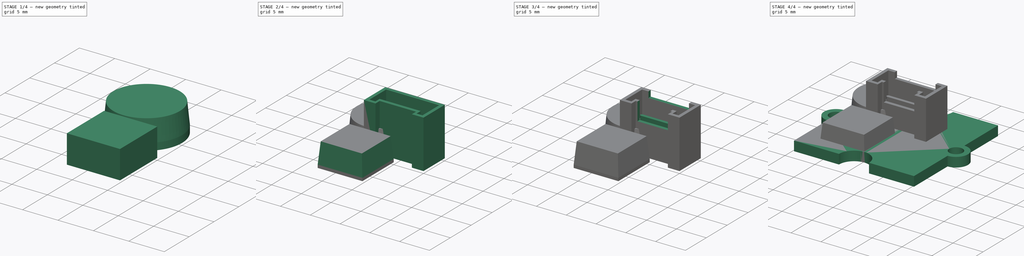
[diagram: build sequence overview — one tinted view per stage of 4, left to right]
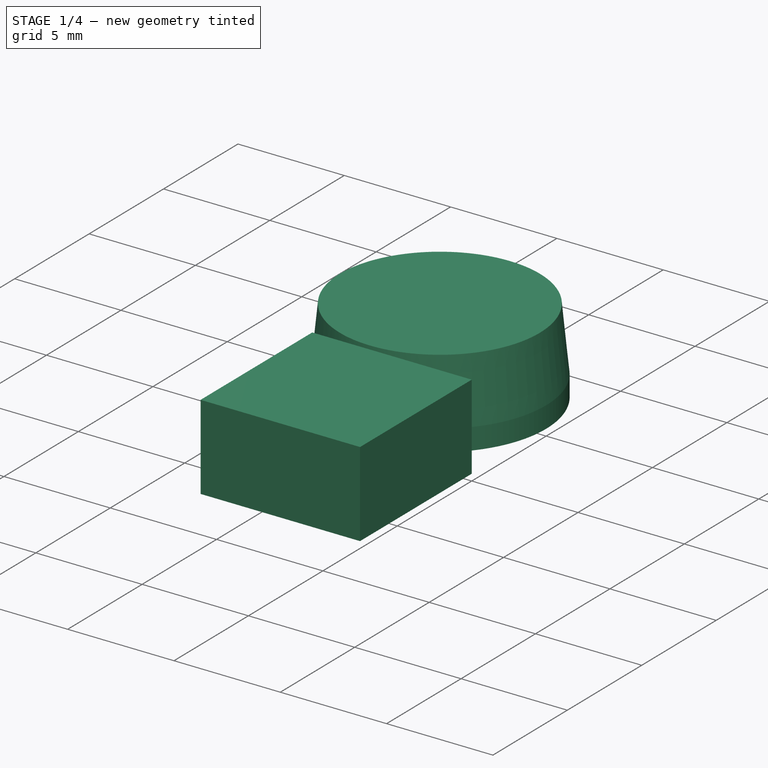
[diagram: stage 1 of 4 — iso view after this stage's code; geometry added in this stage tinted green]
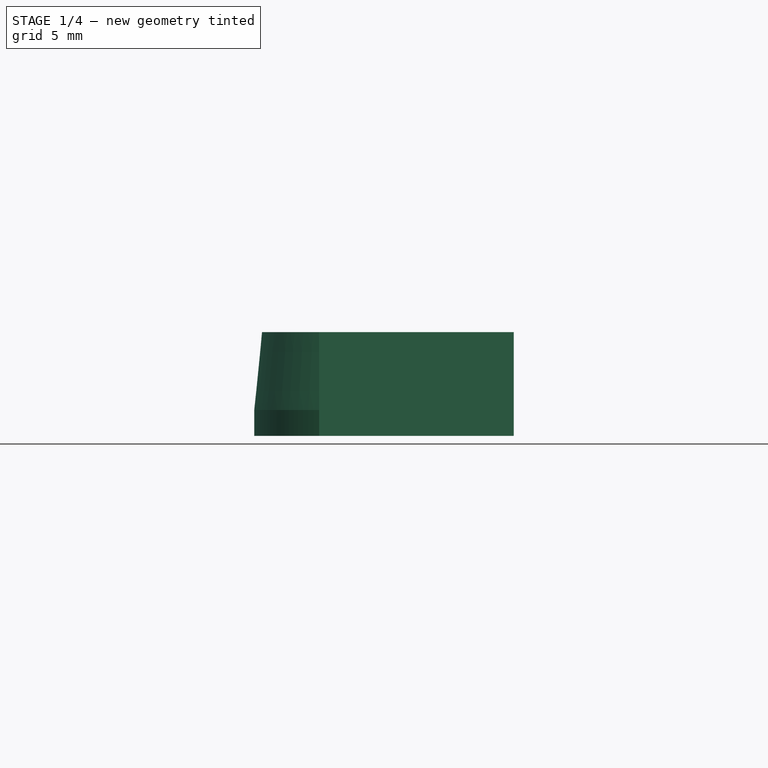
[diagram: stage 1 of 4 — front view after this stage's code; geometry added in this stage tinted green]
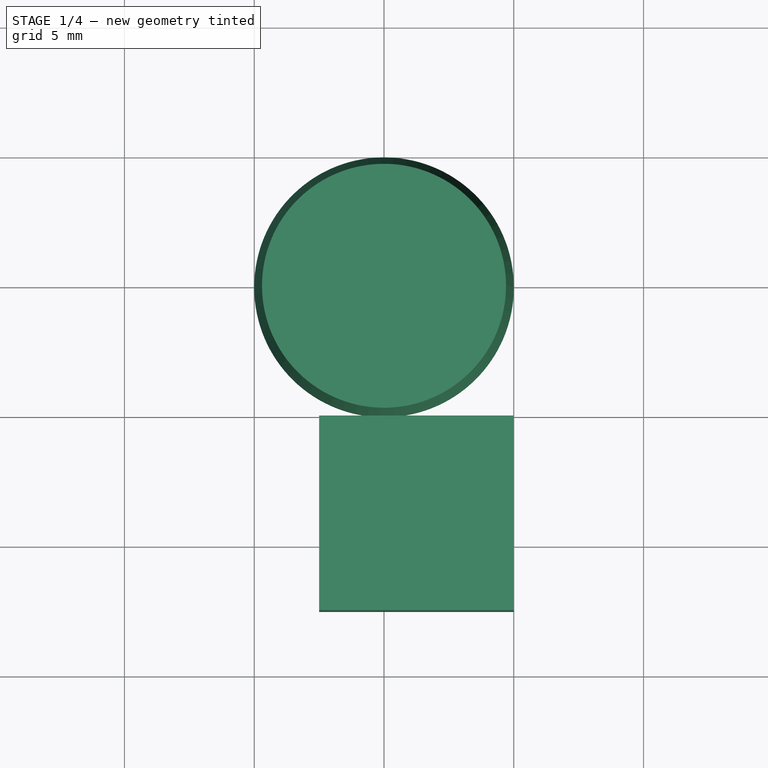
[diagram: stage 1 of 4 — top view after this stage's code; geometry added in this stage tinted green]
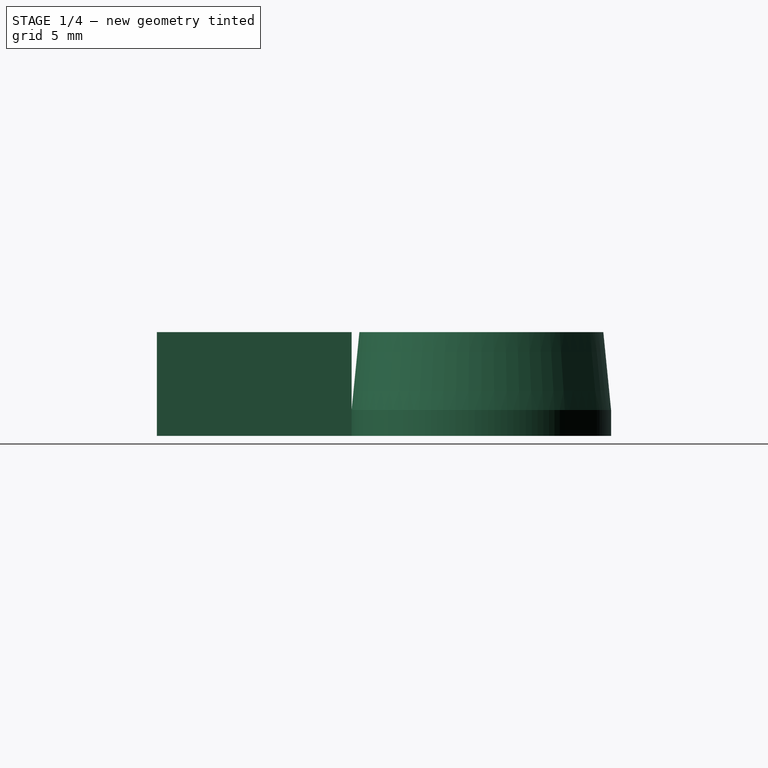
[diagram: stage 1 of 4 — right view after this stage's code; geometry added in this stage tinted green]
FCSTD DOCUMENT  (FreeCAD 0.19R24276 (Git))
Label: Grove_LoudnessSensor
License: All rights reserved
LicenseURL: http://en.wikipedia.org/wiki/All_rights_reserved
objects: Sketcher::SketchObject×10, PartDesign::Pad×6, PartDesign::Pocket×4, PartDesign::Body×4, PartDesign::Chamfer×2, App::Part×1
note: 38 computed .brp shape members not serialized (recipe doc carries the construction recipe); baked Part::Feature solids carry a one-line shape summary decoded from their .brp

FEATURE [PartDesign::Body] Body005  label="GroveHeader1"
  Group = -> [Sketch008,Pad005,Sketch009,Pocket003,Sketch010,Pocket004,Sketch011,Pocket005,Sketch012,Pad006,Sketch013,Pad007]
  Origin = -> Origin007
  Placement = pos=(-8.8,-1.1e-15,1.6) rot=(0,0,1;4.71239rad)
  Tip = -> Pad007
FEATURE [Sketcher::SketchObject] Sketch014
  FullyConstrained = true
  MapMode = 5
  Support = -> [XY_Plane008]
  sketch-geometry (4):
    g0: LineSegment StartX=0 StartY=0 StartZ=0 EndX=-7.5 EndY=0 EndZ=0
    g1: LineSegment StartX=-7.5 StartY=0 StartZ=0 EndX=-7.5 EndY=-7.5 EndZ=0
    g2: LineSegment StartX=-7.5 StartY=-7.5 StartZ=0 EndX=0 EndY=-7.5 EndZ=0
    g3: LineSegment StartX=0 StartY=-7.5 StartZ=0 EndX=0 EndY=0 EndZ=0
  constraints (11):
    c: Coincident(g0,g1)
    c: Coincident(g1,g2)
    c: Coincident(g2,g3)
    c: Coincident(g3,g0)
    c: Horizontal(g0)
    c: Horizontal(g2)
    c: Vertical(g1)
    c: Vertical(g3)
    c: Coincident(g0,g-1)
    c: Distance(g0) = 7.5
    c: Equal(g3,g0)
FEATURE [PartDesign::Pad] Pad008
  Direction = (1,1,1)
  Length = 4
  Length2 = 100
  Profile = -> Sketch014
  Type = 0
FEATURE [PartDesign::Body] Body006  label="VolumePot"
  Group = -> [Sketch014,Pad008,Chamfer]
  Origin = -> Origin008
  Placement = pos=(10,10,1.6) rot=(0,0,1;0rad)
  Tip = -> Chamfer
FEATURE [Sketcher::SketchObject] Sketch015
  FullyConstrained = true
  MapMode = 5
  Support = -> [XY_Plane009]
  sketch-geometry (3):
    g0: Circle CenterX=-5 CenterY=5 CenterZ=0 NormalX=0 NormalY=0 NormalZ=1 AngleXU=0 Radius=5
    g1: LineSegment StartX=0 StartY=0 StartZ=0 EndX=0 EndY=5 EndZ=0
    g2: LineSegment StartX=0 StartY=0 StartZ=0 EndX=-4.99998 EndY=0 EndZ=0
  constraints (9):
    c: Coincident(g1,g-1)
    c: PointOnObject(g1,g-2)
    c: Coincident(g2,g-1)
    c: Horizontal(g2)
    c: Tangent(g1,g0)
    c: Tangent(g2,g0)
    c: PointOnObject(g1,g0)
    c: PointOnObject(g2,g0)
    c: Diameter(g0) = 10
FEATURE [PartDesign::Pad] Pad009
  Direction = (1,1,1)
  Length = 4
  Length2 = 100
  Profile = -> Sketch015
  Type = 0
FEATURE [PartDesign::Chamfer] Chamfer001
  Angle = 45
  Base = -> Pad009 [Edge3]
  BaseFeature = -> Pad009
  ChamferType = 1
  FlipDirection = false
  Size = 3
  Size2 = 0.3
  SupportTransform = false
FEATURE [PartDesign::Body] Body007  label="Speaker"
  Group = -> [Sketch015,Pad009,Chamfer001]
  Origin = -> Origin009
  Placement = pos=(11,-10,1.6) rot=(0,0,1;0rad)
  Tip = -> Chamfer001
FEATURE [App::Part] Part  label="Grove_LoudnessSens"
  Group = -> [Body,Body005,Body006,Body007]
  Origin = -> Origin
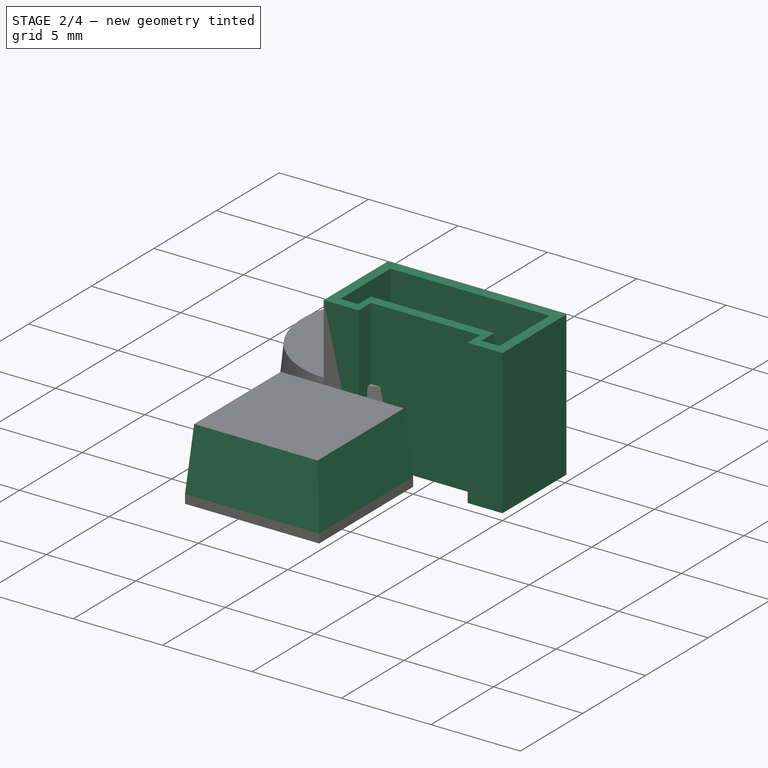
[diagram: stage 2 of 4 — iso view after this stage's code; geometry added in this stage tinted green]
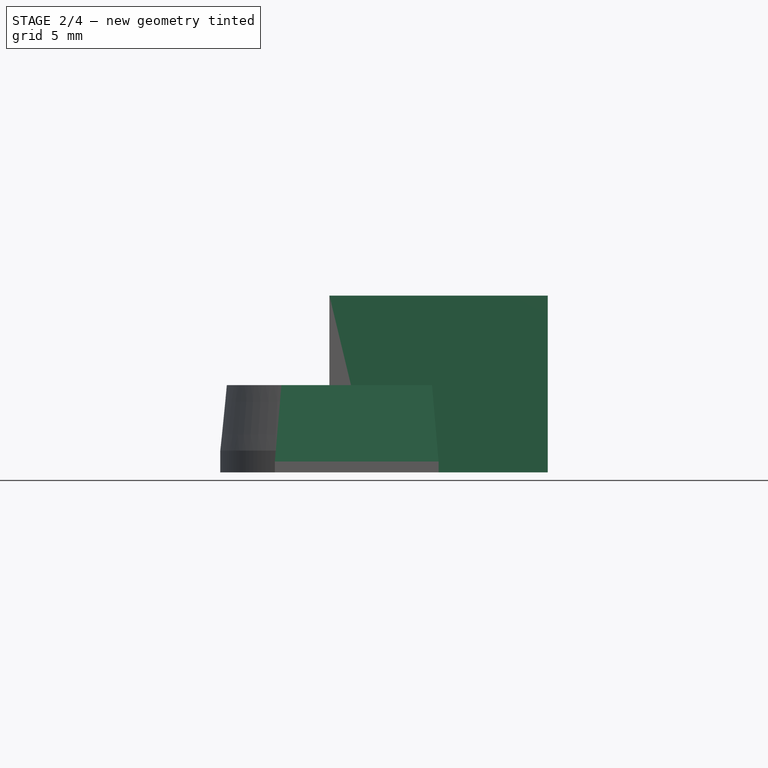
[diagram: stage 2 of 4 — front view after this stage's code; geometry added in this stage tinted green]
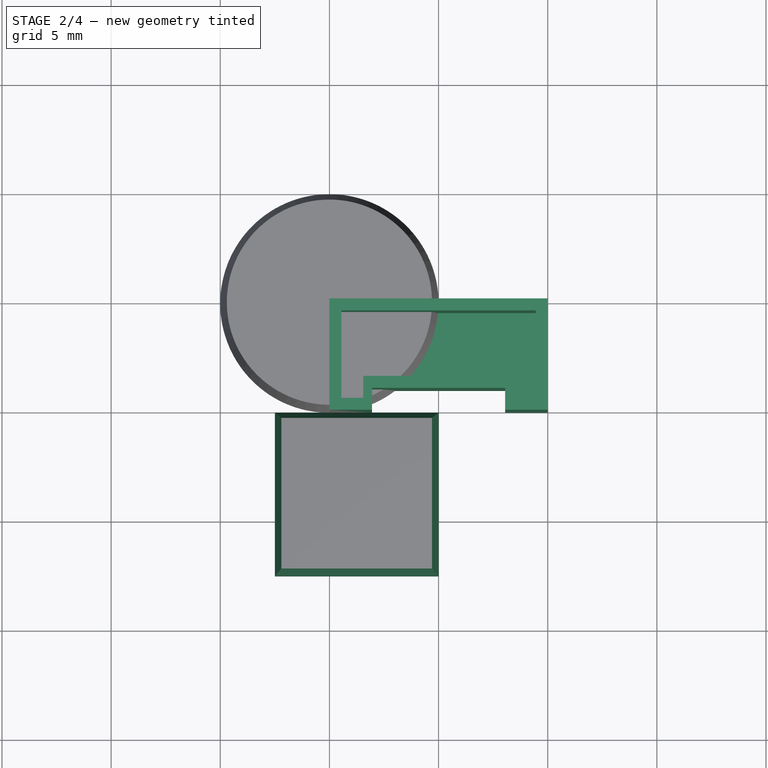
[diagram: stage 2 of 4 — top view after this stage's code; geometry added in this stage tinted green]
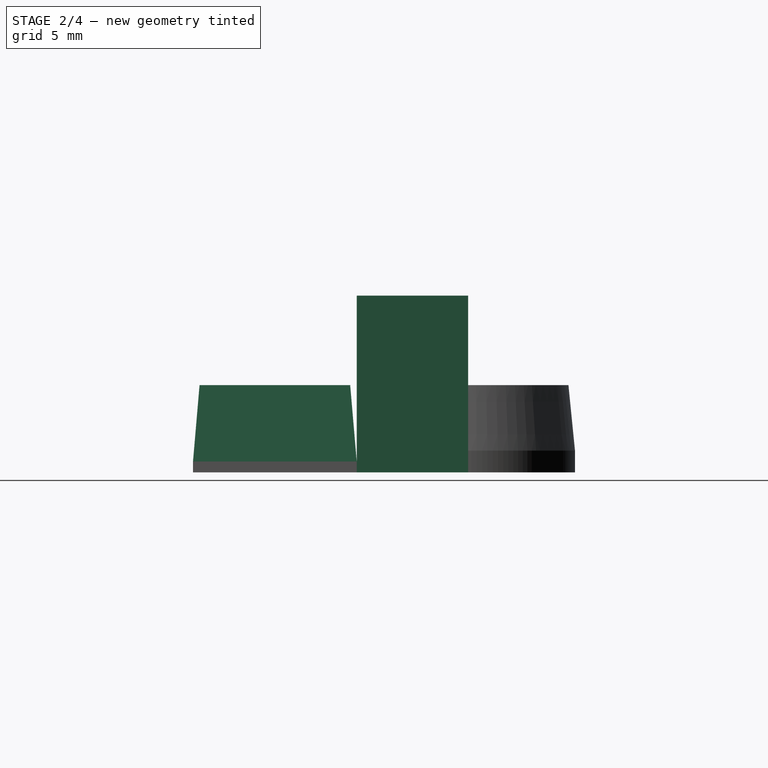
[diagram: stage 2 of 4 — right view after this stage's code; geometry added in this stage tinted green]
FEATURE [PartDesign::Body] Body  label="GroveBoard"
  Group = -> [Sketch,Pad,Sketch001,Pocket]
  Origin = -> Origin001
  Tip = -> Pocket
FEATURE [Sketcher::SketchObject] Sketch008
  FullyConstrained = true
  MapMode = 5
  Support = -> [XY_Plane007]
  sketch-geometry (8):
    g0: LineSegment StartX=-5 StartY=0 StartZ=0 EndX=-3.05 EndY=0 EndZ=0
    g1: LineSegment StartX=3.05 StartY=0 StartZ=0 EndX=5 EndY=0 EndZ=0
    g2: LineSegment StartX=-5 StartY=0 StartZ=0 EndX=-5 EndY=5.1 EndZ=0
    g3: LineSegment StartX=-5 StartY=5.1 StartZ=0 EndX=5 EndY=5.1 EndZ=0
    g4: LineSegment StartX=5 StartY=5.1 StartZ=0 EndX=5 EndY=0 EndZ=0
    g5: LineSegment StartX=3.05 StartY=0 StartZ=0 EndX=3.05 EndY=1 EndZ=0
    g6: LineSegment StartX=3.05 StartY=1 StartZ=0 EndX=-3.05 EndY=1 EndZ=0
    g7: LineSegment StartX=-3.05 StartY=1 StartZ=0 EndX=-3.05 EndY=0 EndZ=0
  constraints (23):
    c: PointOnObject(g0,g-1)
    c: PointOnObject(g1,g-1)
    c: PointOnObject(g0,g-1)
    c: Coincident(g2,g0)
    c: Vertical(g2)
    c: Coincident(g3,g2)
    c: Horizontal(g3)
    c: Coincident(g4,g3)
    c: Coincident(g4,g1)
    c: Vertical(g4)
    c: Coincident(g5,g1)
    c: Vertical(g5)
    c: Coincident(g6,g5)
    c: Horizontal(g6)
    c: Coincident(g7,g6)
    c: Coincident(g7,g0)
    c: Vertical(g7)
    c: Equal(g0,g1)
    c: Symmetric(g0,g1,g-1)
    c: Distance(g4) = 5.1
    c: Distance(g6) = 6.1
    c: Distance(g3) = 10
    c: Distance(g7) = 1
FEATURE [Sketcher::SketchObject] Sketch013
  FullyConstrained = true
  MapMode = 5
  Support = -> [XY_Plane007]
  sketch-geometry (5):
    g0: ArcOfCircle CenterX=-3 CenterY=3 CenterZ=0 NormalX=0 NormalY=0 NormalZ=1 AngleXU=0 Radius=0.75 StartAngle=1.5708 EndAngle=4.71239
    g1: ArcOfCircle CenterX=3 CenterY=3 CenterZ=0 NormalX=0 NormalY=0 NormalZ=1 AngleXU=0 Radius=0.75 StartAngle=4.71239 EndAngle=7.85398
    g2: LineSegment StartX=-3 StartY=2.25 StartZ=0 EndX=3 EndY=2.25 EndZ=0
    g3: LineSegment StartX=-3 StartY=3.75 StartZ=0 EndX=3 EndY=3.75 EndZ=0
    g4: LineSegment StartX=0 StartY=0 StartZ=0 EndX=0 EndY=3 EndZ=0
  constraints (12):
    c: Tangent(g0,g3) = 1.5708
    c: Tangent(g0,g2) = -1.5708
    c: Tangent(g2,g1) = -1.5708
    c: Tangent(g3,g1) = 1.5708
    c: Horizontal(g2)
    c: Equal(g0,g1)
    c: Coincident(g4,g-1)
    c: PointOnObject(g4,g-2)
    c: Symmetric(g0,g1,g4)
    c: Distance(g4) = 3
    c: DistanceY(g1,g1) = 1.5
    c: DistanceX(g0,g1) = 6
FEATURE [PartDesign::Pad] Pad005
  Direction = (1,1,1)
  Length = 8.1
  Length2 = 100
  Profile = -> Sketch008
  Type = 0
FEATURE [Sketcher::SketchObject] Sketch009
  FullyConstrained = true
  MapMode = 5
  Placement = pos=(0,0,8.1) rot=(0,0,1;0rad)
  Support = -> [Pad005]
  sketch-geometry (10):
    g0: LineSegment StartX=-4.45 StartY=0.55 StartZ=0 EndX=-3.45 EndY=0.55 EndZ=0
    g1: LineSegment StartX=-3.45 StartY=0.55 StartZ=0 EndX=-3.45 EndY=1.55 EndZ=0
    g2: LineSegment StartX=-3.45 StartY=1.55 StartZ=0 EndX=3.45 EndY=1.55 EndZ=0
    g3: LineSegment StartX=3.45 StartY=1.55 StartZ=0 EndX=3.45 EndY=0.55 EndZ=0
    g4: LineSegment StartX=3.45 StartY=0.55 StartZ=0 EndX=4.45 EndY=0.55 EndZ=0
    g5: LineSegment StartX=4.45 StartY=0.55 StartZ=0 EndX=4.45 EndY=4.55 EndZ=0
    g6: LineSegment StartX=4.45 StartY=4.55 StartZ=0 EndX=-4.45 EndY=4.55 EndZ=0
    g7: LineSegment StartX=-4.45 StartY=4.55 StartZ=0 EndX=-4.45 EndY=0.55 EndZ=0
    g8: LineSegment StartX=-3.45 StartY=0.55 StartZ=0 EndX=3.45 EndY=0.55 EndZ=0
    g9: LineSegment StartX=0 StartY=0 StartZ=0 EndX=0 EndY=0.55 EndZ=0
  constraints (28):
    c: Horizontal(g0)
    c: Coincident(g1,g0)
    c: Coincident(g2,g1)
    c: Horizontal(g2)
    c: Coincident(g3,g2)
    c: Vertical(g3)
    c: Coincident(g4,g3)
    c: Horizontal(g4)
    c: Coincident(g5,g4)
    c: Vertical(g5)
    c: Coincident(g6,g5)
    c: Horizontal(g6)
    c: Coincident(g7,g6)
    c: Coincident(g7,g0)
    c: Vertical(g7)
    c: Vertical(g1)
    c: Coincident(g8,g0)
    c: Coincident(g8,g3)
    c: Horizontal(g8)
    c: Equal(g0,g4)
    c: Coincident(g9,g-1)
    c: PointOnObject(g9,g-2)
    c: Symmetric(g0,g3,g9)
    c: Distance(g0) = 1
    c: Distance(g1) = 1
    c: Distance(g9) = 0.55
    c: Distance(g6) = 8.9
    c: DistanceY(g2,g5) = 3
FEATURE [PartDesign::Pocket] Pocket003
  BaseFeature = -> Pad005
  Length = 7
  Length2 = 100
  Profile = -> Sketch009
  Type = 0
FEATURE [PartDesign::Chamfer] Chamfer
  Angle = 45
  Base = -> Pad008 [Edge10,Edge12,Edge4,Edge7]
  BaseFeature = -> Pad008
  ChamferType = 1
  FlipDirection = false
  Size = 3.5
  Size2 = 0.3
  SupportTransform = false
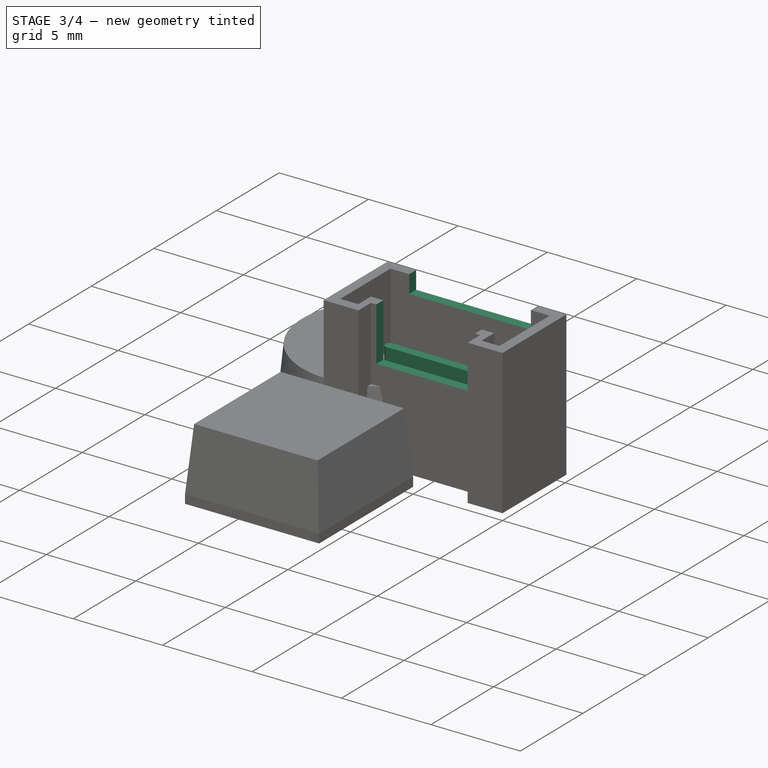
[diagram: stage 3 of 4 — iso view after this stage's code; geometry added in this stage tinted green]
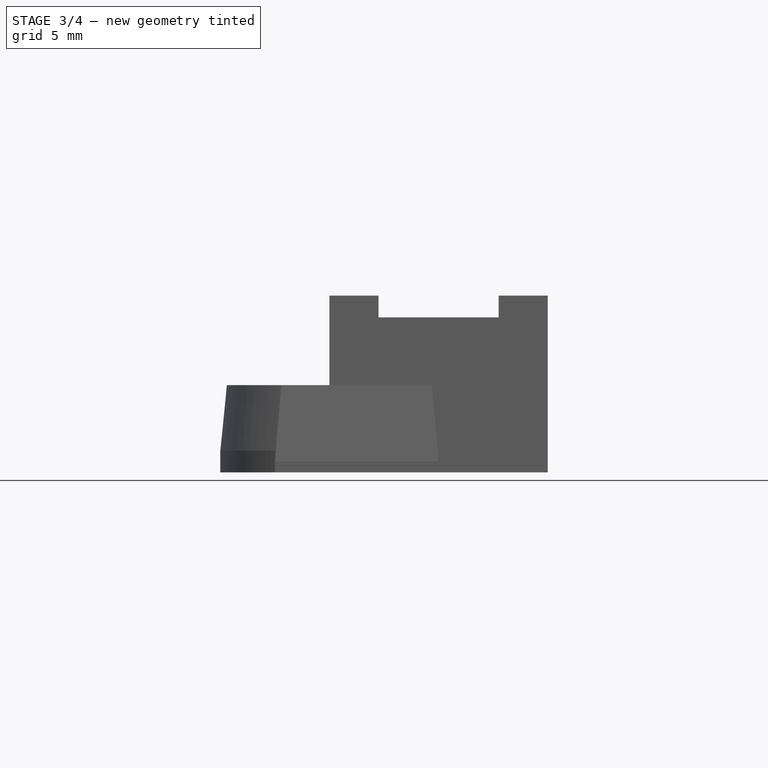
[diagram: stage 3 of 4 — front view after this stage's code; geometry added in this stage tinted green]
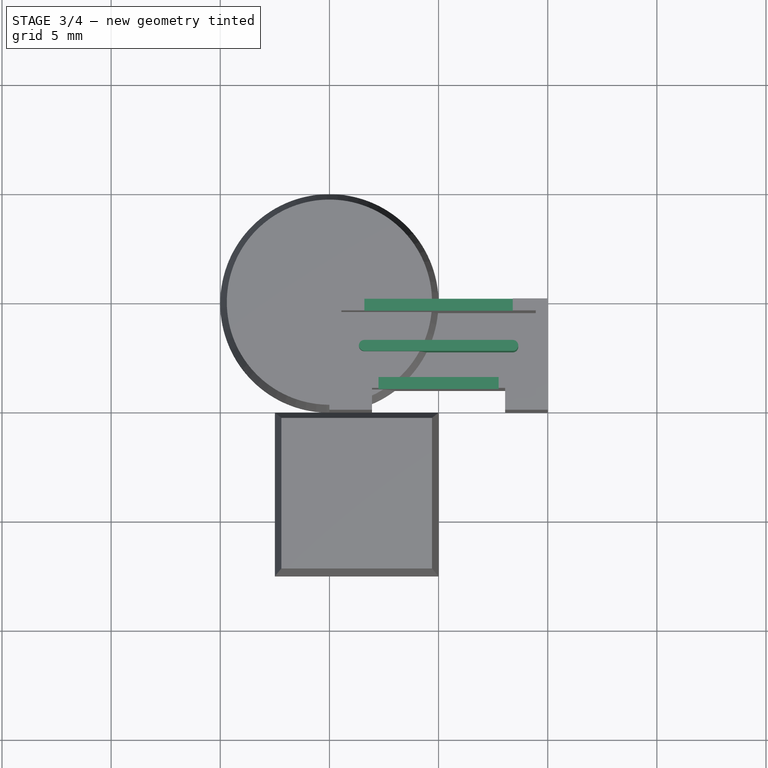
[diagram: stage 3 of 4 — top view after this stage's code; geometry added in this stage tinted green]
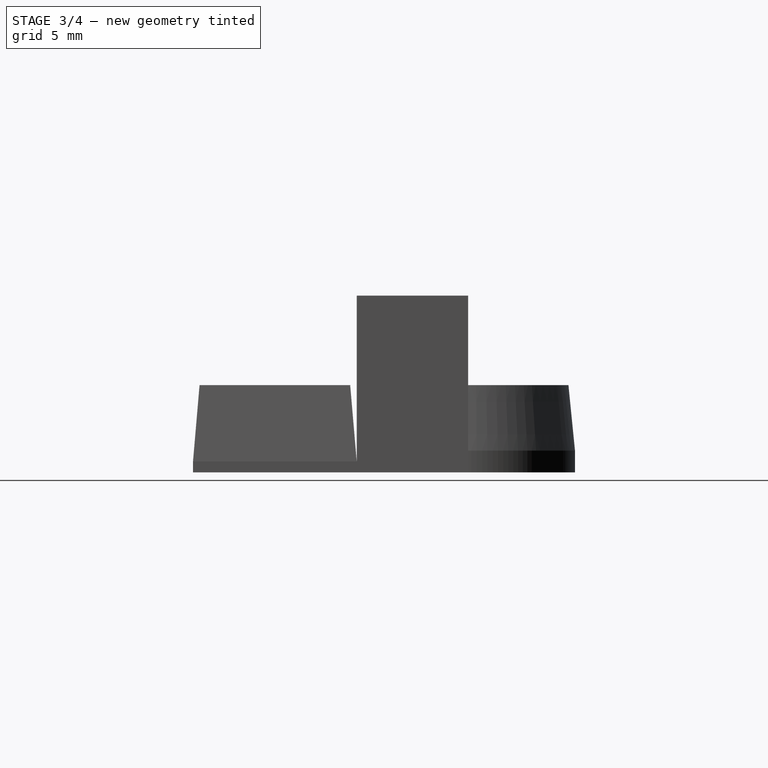
[diagram: stage 3 of 4 — right view after this stage's code; geometry added in this stage tinted green]
FEATURE [Sketcher::SketchObject] Sketch010
  FullyConstrained = true
  MapMode = 5
  Placement = pos=(0,0,8.1) rot=(0,0,1;0rad)
  Support = -> [Pocket003]
  sketch-geometry (5):
    g0: LineSegment StartX=0 StartY=0 StartZ=0 EndX=0 EndY=3 EndZ=0
    g1: LineSegment StartX=-3.4 StartY=8 StartZ=0 EndX=3.4 EndY=8 EndZ=0
    g2: LineSegment StartX=3.4 StartY=8 StartZ=0 EndX=3.4 EndY=3 EndZ=0
    g3: LineSegment StartX=3.4 StartY=3 StartZ=0 EndX=-3.4 EndY=3 EndZ=0
    g4: LineSegment StartX=-3.4 StartY=3 StartZ=0 EndX=-3.4 EndY=8 EndZ=0
  constraints (14):
    c: Coincident(g0,g-1)
    c: PointOnObject(g0,g-2)
    c: Coincident(g1,g2)
    c: Coincident(g2,g3)
    c: Coincident(g3,g4)
    c: Coincident(g4,g1)
    c: Horizontal(g1)
    c: Horizontal(g3)
    c: Vertical(g2)
    c: Vertical(g4)
    c: Symmetric(g3,g2,g0)
    c: Distance(g0) = 3
    c: Distance(g2) = 5
    c: Distance(g1) = 6.8
FEATURE [PartDesign::Pocket] Pocket004
  BaseFeature = -> Pocket003
  Length = 1
  Length2 = 100
  Profile = -> Sketch010
  Type = 0
FEATURE [Sketcher::SketchObject] Sketch011
  FullyConstrained = true
  MapMode = 5
  Placement = pos=(0,0,8.1) rot=(0,0,1;0rad)
  Support = -> [Pocket004]
  sketch-geometry (4):
    g0: LineSegment StartX=-2.75 StartY=3 StartZ=0 EndX=2.75 EndY=3 EndZ=0
    g1: LineSegment StartX=2.75 StartY=3 StartZ=0 EndX=2.75 EndY=0 EndZ=0
    g2: LineSegment StartX=2.75 StartY=0 StartZ=0 EndX=-2.75 EndY=0 EndZ=0
    g3: LineSegment StartX=-2.75 StartY=0 StartZ=0 EndX=-2.75 EndY=3 EndZ=0
  constraints (11):
    c: Coincident(g0,g1)
    c: Coincident(g1,g2)
    c: Coincident(g2,g3)
    c: Coincident(g3,g0)
    c: Horizontal(g0)
    c: Horizontal(g2)
    c: Vertical(g1)
    c: Vertical(g3)
    c: Symmetric(g2,g1,g-1)
    c: Distance(g1) = 3
    c: Distance(g0) = 5.5
FEATURE [PartDesign::Pocket] Pocket005
  BaseFeature = -> Pocket004
  Length = 3
  Length2 = 100
  Profile = -> Sketch011
  Type = 0
FEATURE [Sketcher::SketchObject] Sketch012
  FullyConstrained = true
  MapMode = 5
  Placement = pos=(0,0,1.1) rot=(0,0,1;0rad)
  Support = -> [Pocket005]
  sketch-geometry (5):
    g0: ArcOfCircle CenterX=-3.4 CenterY=3 CenterZ=0 NormalX=0 NormalY=0 NormalZ=1 AngleXU=0 Radius=0.25 StartAngle=1.5708 EndAngle=4.71239
    g1: ArcOfCircle CenterX=3.4 CenterY=3 CenterZ=0 NormalX=0 NormalY=0 NormalZ=1 AngleXU=0 Radius=0.25 StartAngle=4.71239 EndAngle=7.85398
    g2: LineSegment StartX=-3.4 StartY=2.75 StartZ=0 EndX=3.4 EndY=2.75 EndZ=0
    g3: LineSegment StartX=-3.4 StartY=3.25 StartZ=0 EndX=3.4 EndY=3.25 EndZ=0
    g4: LineSegment StartX=0 StartY=0 StartZ=0 EndX=0 EndY=2.75 EndZ=0
  constraints (12):
    c: Tangent(g0,g3) = 1.5708
    c: Tangent(g0,g2) = -1.5708
    c: Tangent(g2,g1) = -1.5708
    c: Tangent(g3,g1) = 1.5708
    c: Horizontal(g2)
    c: Equal(g0,g1)
    c: Coincident(g4,g-1)
    c: PointOnObject(g4,g-2)
    c: Symmetric(g0,g1,g4)
    c: DistanceY(g-1,g1) = 3
    c: DistanceY(g1,g1) = 0.5
    c: DistanceX(g0,g1) = 6.8
FEATURE [PartDesign::Pad] Pad006
  BaseFeature = -> Pocket005
  Direction = (1,1,1)
  Length = 4
  Length2 = 100
  Profile = -> Sketch012
  Type = 0
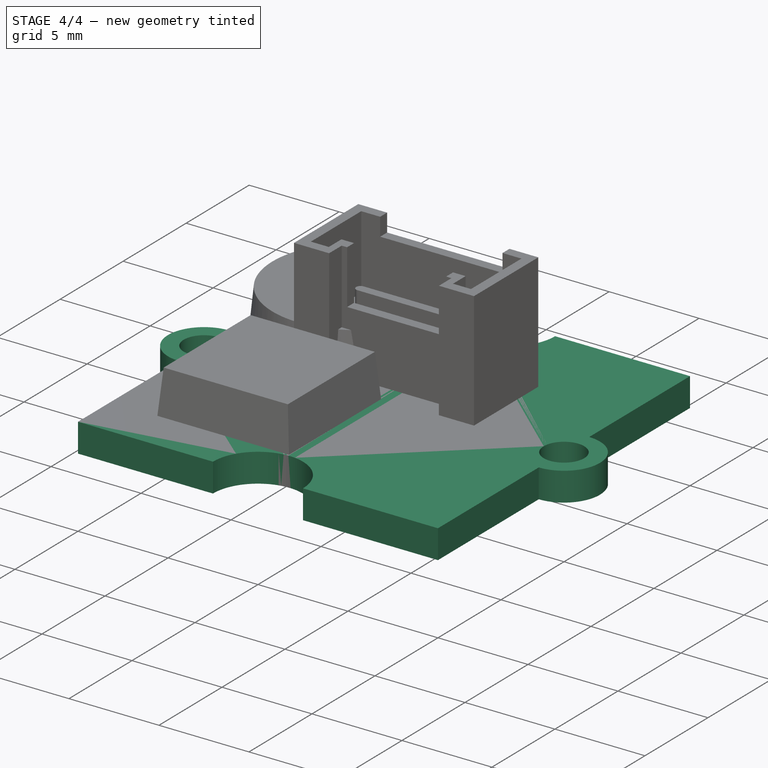
[diagram: stage 4 of 4 — iso view after this stage's code; geometry added in this stage tinted green]
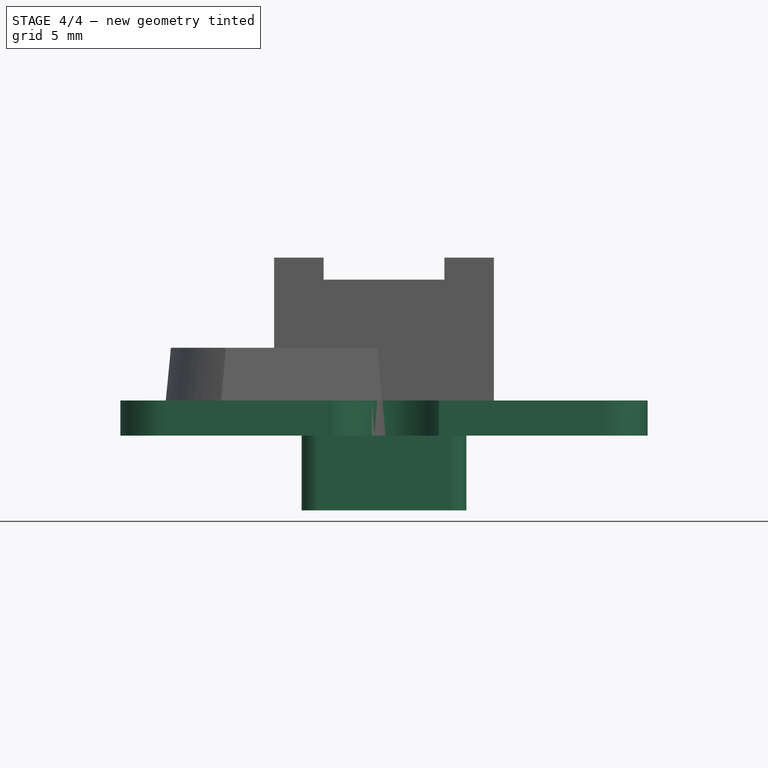
[diagram: stage 4 of 4 — front view after this stage's code; geometry added in this stage tinted green]
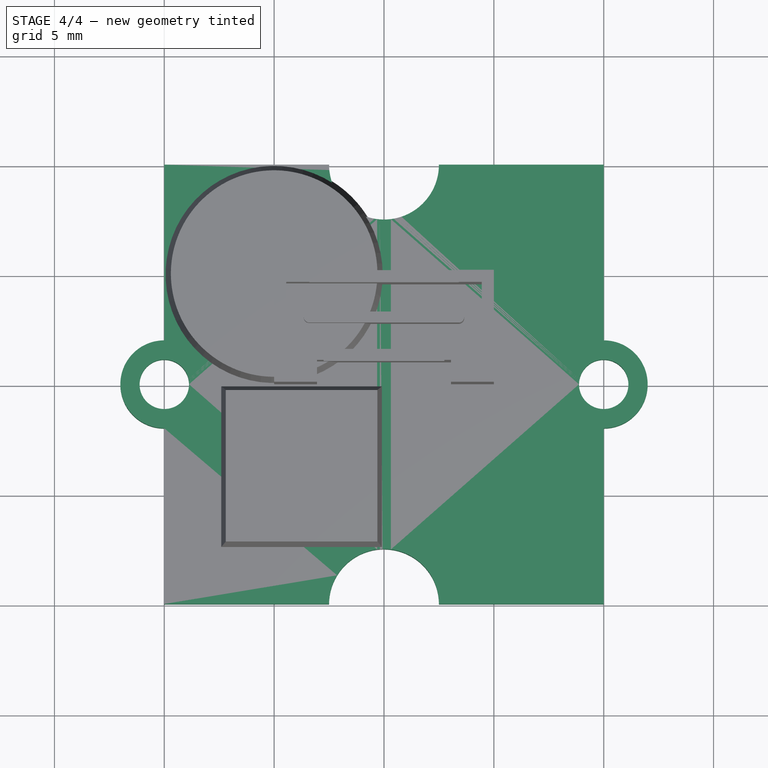
[diagram: stage 4 of 4 — top view after this stage's code; geometry added in this stage tinted green]
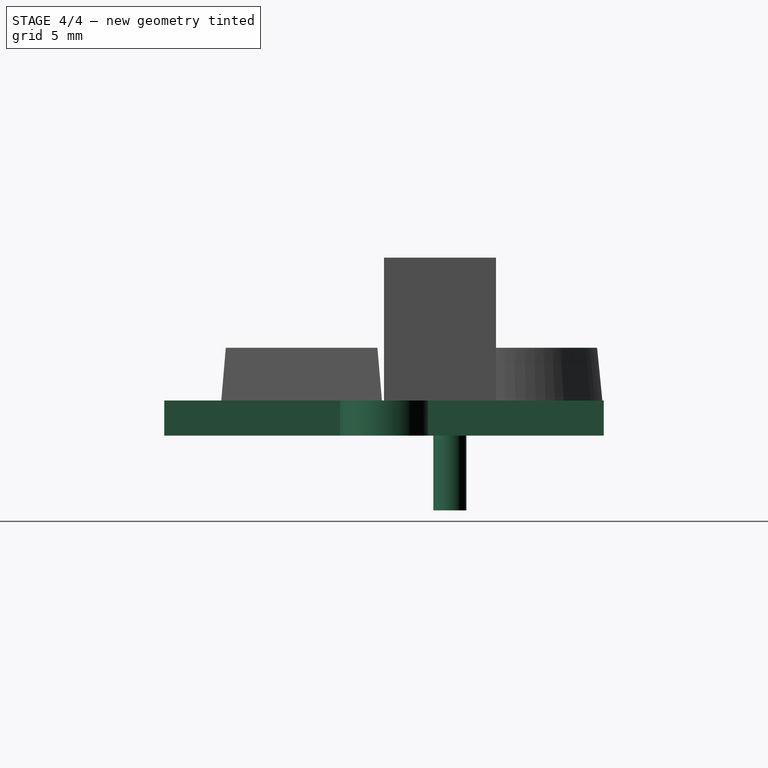
[diagram: stage 4 of 4 — right view after this stage's code; geometry added in this stage tinted green]
FEATURE [Sketcher::SketchObject] Sketch
  FullyConstrained = true
  MapMode = 5
  Support = -> [XY_Plane001]
  sketch-geometry (16):
    g0: LineSegment StartX=-10 StartY=10 StartZ=0 EndX=-2.5 EndY=10 EndZ=0
    g1: LineSegment StartX=2.5 StartY=10 StartZ=0 EndX=10 EndY=10 EndZ=0
    g2: LineSegment StartX=10 StartY=10 StartZ=0 EndX=10 EndY=2 EndZ=0
    g3: LineSegment StartX=10 StartY=-2 StartZ=0 EndX=10 EndY=-10 EndZ=0
    g4: LineSegment StartX=10 StartY=-10 StartZ=0 EndX=2.5 EndY=-10 EndZ=0
    g5: LineSegment StartX=-2.5 StartY=-10 StartZ=0 EndX=-10 EndY=-10 EndZ=0
    g6: LineSegment StartX=-10 StartY=-10 StartZ=0 EndX=-10 EndY=-2 EndZ=0
    g7: LineSegment StartX=-10 StartY=10 StartZ=0 EndX=-10 EndY=2 EndZ=0
    g8: ArcOfCircle CenterX=0 CenterY=10 CenterZ=0 NormalX=0 NormalY=0 NormalZ=1 AngleXU=0 Radius=2.5 StartAngle=3.14159 EndAngle=6.28319
    g9: ArcOfCircle CenterX=0 CenterY=-10 CenterZ=0 NormalX=0 NormalY=0 NormalZ=1 AngleXU=0 Radius=2.5 StartAngle=0 EndAngle=3.14159
    g10: LineSegment StartX=-2.5 StartY=10 StartZ=0 EndX=2.5 EndY=10 EndZ=0
    g11: LineSegment StartX=-2.5 StartY=-10 StartZ=0 EndX=2.5 EndY=-10 EndZ=0
    g12: LineSegment StartX=-10 StartY=2 StartZ=0 EndX=-10 EndY=-2 EndZ=0
    g13: LineSegment StartX=10 StartY=2 StartZ=0 EndX=10 EndY=-2 EndZ=0
    g14: ArcOfCircle CenterX=-10 CenterY=0 CenterZ=0 NormalX=0 NormalY=0 NormalZ=1 AngleXU=0 Radius=2 StartAngle=1.5708 EndAngle=4.71239
    g15: ArcOfCircle CenterX=10 CenterY=0 CenterZ=0 NormalX=0 NormalY=0 NormalZ=1 AngleXU=0 Radius=2 StartAngle=4.71239 EndAngle=7.85398
  constraints (48):
    c: Horizontal(g0)
    c: Horizontal(g1)
    c: Coincident(g2,g1)
    c: Vertical(g2)
    c: Vertical(g3)
    c: Coincident(g4,g3)
    c: Horizontal(g4)
    c: Horizontal(g5)
    c: Coincident(g6,g5)
    c: Vertical(g6)
    c: Coincident(g7,g0)
    c: Vertical(g7)
    c: PointOnObject(g8,g-2)
    c: Coincident(g8,g0)
    c: Coincident(g8,g1)
    c: PointOnObject(g9,g-2)
    c: Coincident(g9,g5)
    c: Coincident(g9,g4)
    c: Coincident(g10,g0)
    c: Coincident(g10,g1)
    c: Coincident(g11,g5)
    c: Coincident(g11,g4)
    c: Horizontal(g11)
    c: PointOnObject(g9,g11)
    c: PointOnObject(g8,g10)
    c: Horizontal(g10)
    c: Coincident(g12,g7)
    c: Coincident(g12,g6)
    c: Coincident(g13,g2)
    c: Coincident(g13,g3)
    c: Equal(g10,g11)
    c: Equal(g13,g12)
    c: Vertical(g12)
    c: Vertical(g13)
    c: PointOnObject(g14,g-1)
    c: Coincident(g14,g7)
    c: Coincident(g14,g6)
    c: PointOnObject(g15,g-1)
    c: Coincident(g15,g2)
    c: Coincident(g15,g3)
    c: PointOnObject(g14,g12)
    c: PointOnObject(g15,g13)
    c: Equal(g7,g6)
    c: Equal(g1,g0)
    c: Diameter(g14) = 4
    c: Diameter(g8) = 5
    c: DistanceY(g3,g1) = 20
    c: DistanceX(g0,g1) = 20
FEATURE [PartDesign::Pad] Pad
  Direction = (1,1,1)
  Length = 1.6
  Length2 = 100
  Profile = -> Sketch
  Type = 0
FEATURE [Sketcher::SketchObject] Sketch001
  FullyConstrained = true
  MapMode = 5
  Support = -> [XY_Plane001]
  sketch-geometry (2):
    g0: Circle CenterX=-10 CenterY=0 CenterZ=0 NormalX=0 NormalY=0 NormalZ=1 AngleXU=0 Radius=1.125
    g1: Circle CenterX=10 CenterY=0 CenterZ=0 NormalX=0 NormalY=0 NormalZ=1 AngleXU=0 Radius=1.125
  constraints (5):
    c: PointOnObject(g1,g-1)
    c: Symmetric(g0,g1,g-1)
    c: Equal(g0,g1)
    c: Diameter(g0) = 2.25
    c: DistanceX(g0,g1) = 20
FEATURE [PartDesign::Pocket] Pocket
  BaseFeature = -> Pad
  Length = 5
  Length2 = 100
  Profile = -> Sketch001
  Reversed = true
  Type = 1
FEATURE [PartDesign::Pad] Pad007
  BaseFeature = -> Pad006
  Direction = (1,1,1)
  Length = 3.4
  Length2 = 100
  Profile = -> Sketch013
  Reversed = true
  Type = 0
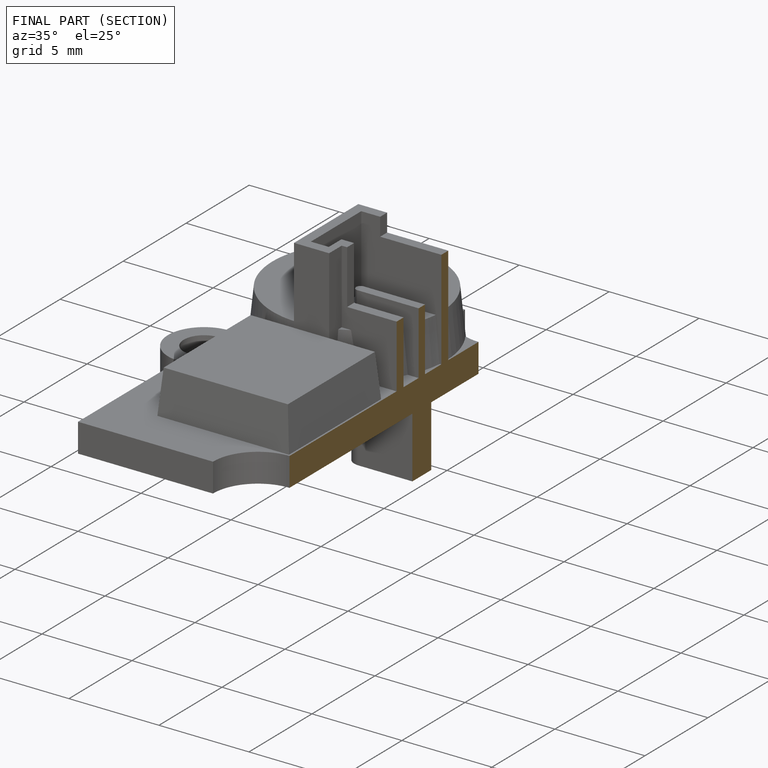
[diagram: finished part — half-section view (interior)]
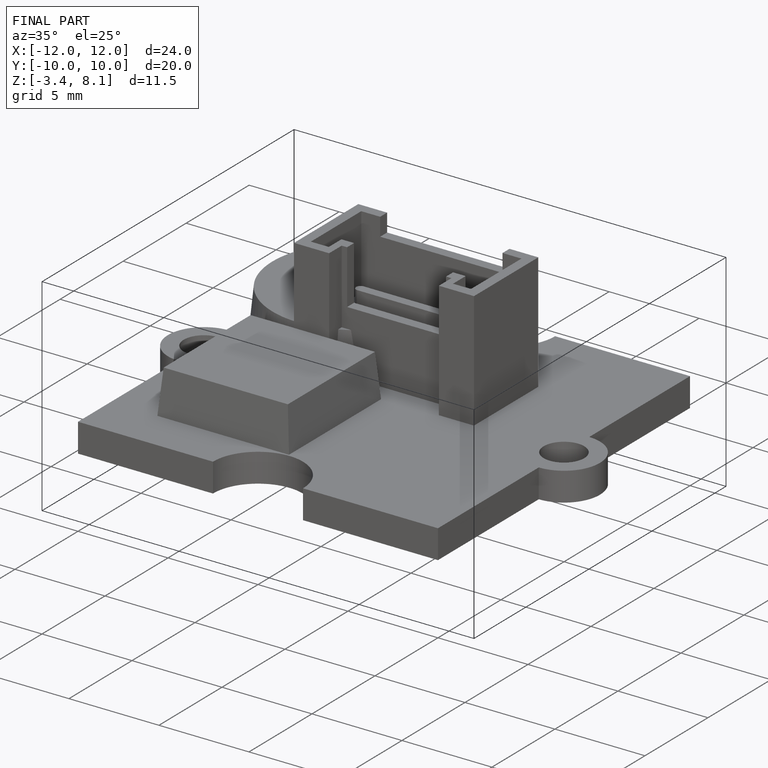
[diagram: finished part — iso view with bounding-box wireframe]
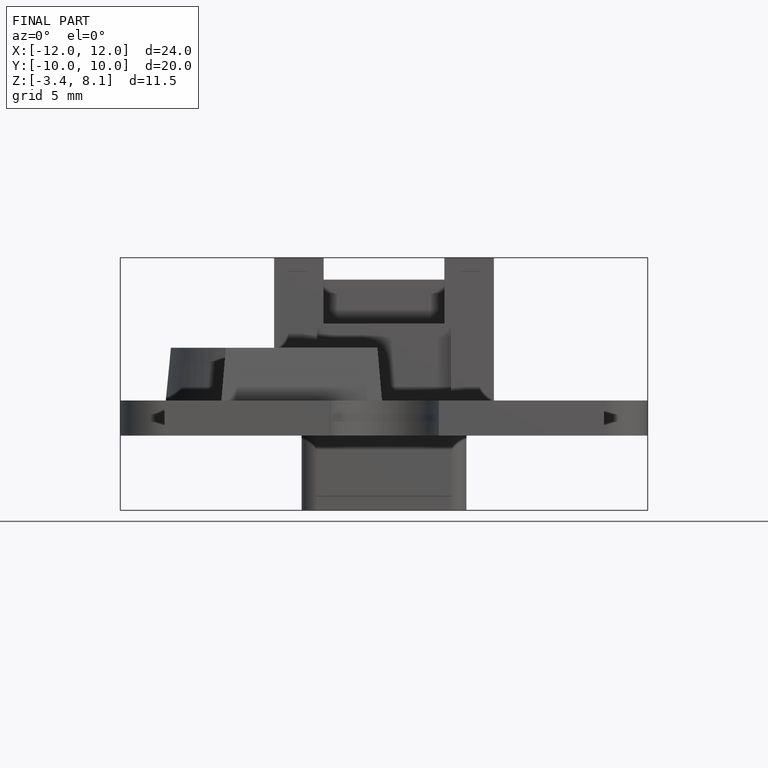
[diagram: finished part — front view with bounding-box wireframe]
